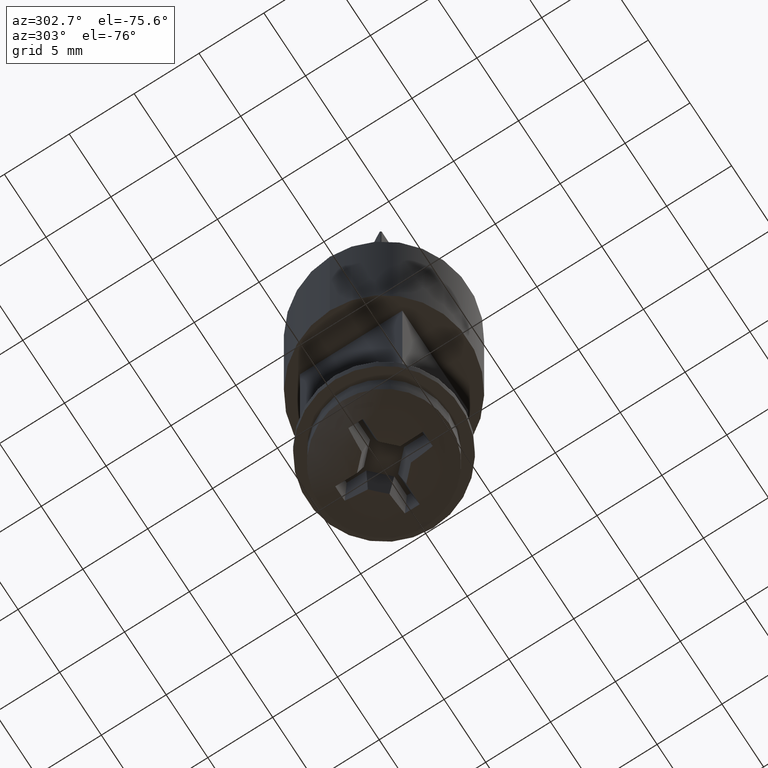
[diagram: clean part render]
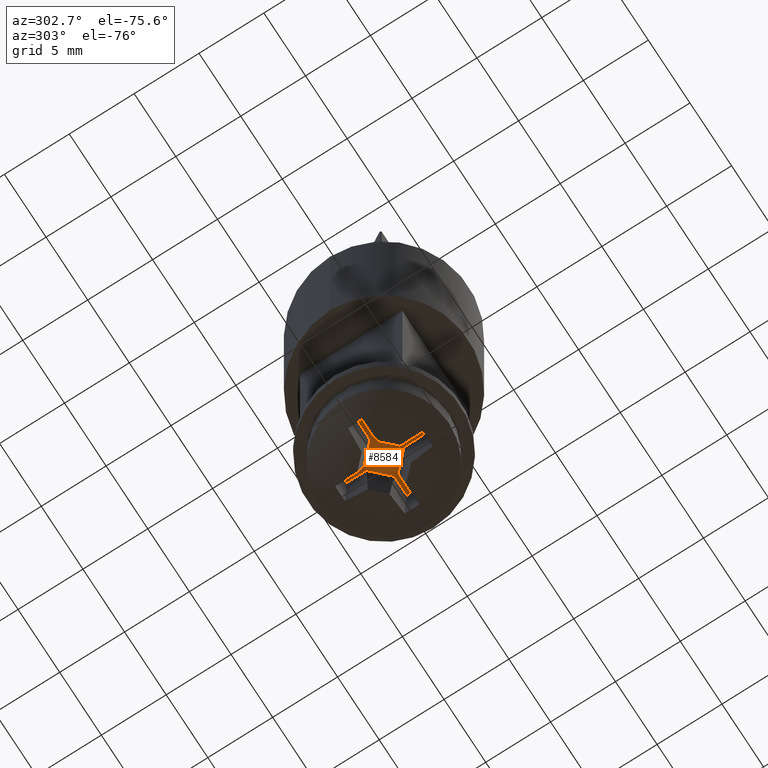
[diagram: same view with one face highlighted and labeled with its STEP entity id]
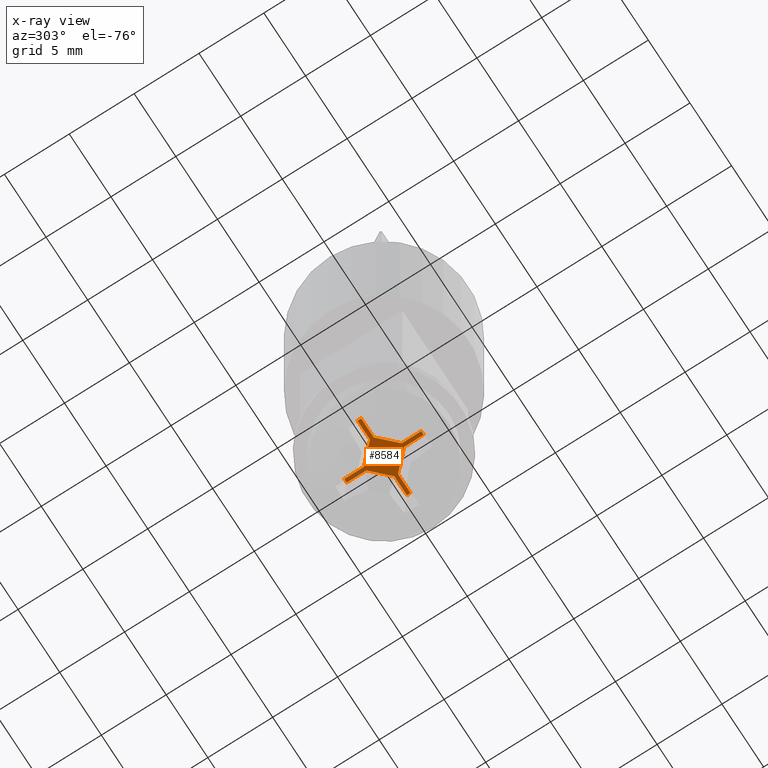
[diagram: x-ray of the same camera — body ghosted, the highlighted face saturated]
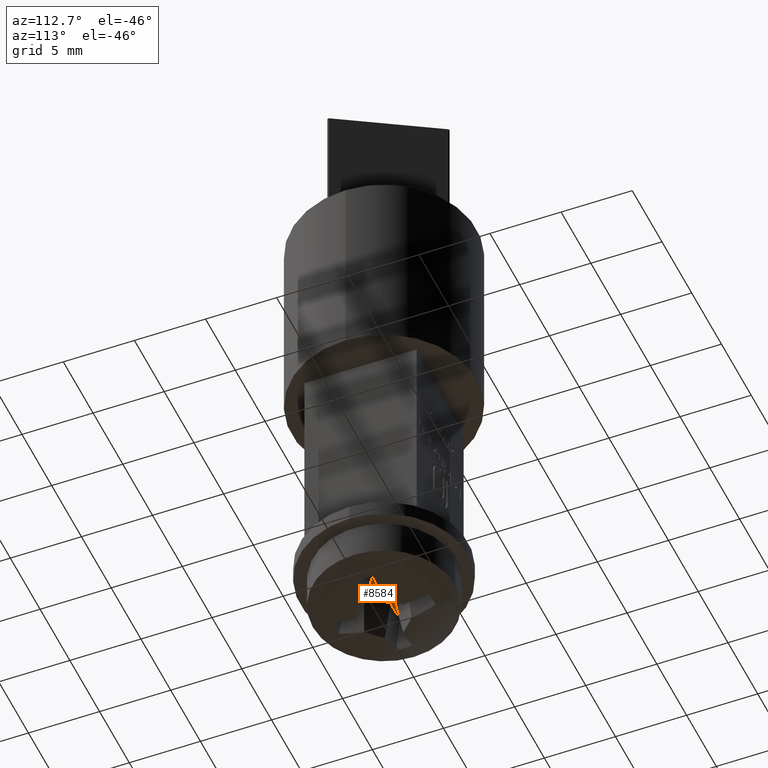
[diagram: same view with one face highlighted and labeled with its STEP entity id]
A machine part, auxiliary view. The second image highlights one B-rep face of the part: STEP entity #8584.
The next image is the same camera in x-ray: the body ghosted, the highlighted face saturated — about 0% of this face is hidden behind the body in this view.
A second angle (auxiliary view) of the same face is appended — the face is thin or edge-on in the first view.
In plain terms, the highlighted planar face has unit normal (-0, 0, 1).
Its self-contained STEP definition (entity closure, byte-faithful):
#67 = CARTESIAN_POINT ( 'NONE',  ( 0.1460190578746038137, 4.900000000000000355, -3.500000000000000000 ) ) ;
#85 = CARTESIAN_POINT ( 'NONE',  ( 2.971019057874603853, 4.900000000000000355, -0.1460190578746039247 ) ) ;
#108 = CARTESIAN_POINT ( 'NONE',  ( 1.455888919534763737, 4.900000000000000355, -0.1460190578746040357 ) ) ;
#118 = DIRECTION ( 'NONE',  ( 1.188166764367676095E-16, 0.000000000000000000, -1.000000000000000000 ) ) ;
#189 = CARTESIAN_POINT ( 'NONE',  ( 0.1460190578746044798, 4.900000000000000355, 2.971019057874603853 ) ) ;
#275 = CARTESIAN_POINT ( 'NONE',  ( -1.455888919534763959, 4.900000000000000355, -0.1460190578746040357 ) ) ;
#663 = VECTOR ( 'NONE', #16184, 1000.000000000000000 ) ;
#721 = DIRECTION ( 'NONE',  ( -1.188166764367676095E-16, 0.000000000000000000, 1.000000000000000000 ) ) ;
#1067 = ORIENTED_EDGE ( 'NONE', *, *, #5951, .T. ) ;
#1099 = VECTOR ( 'NONE', #15096, 1000.000000000000114 ) ;
#1388 = VERTEX_POINT ( 'NONE', #5156 ) ;
#1453 = CARTESIAN_POINT ( 'NONE',  ( -0.1460190578746040357, 4.900000000000000355, 1.455888919534763737 ) ) ;
#1621 = LINE ( 'NONE', #14687, #11266 ) ;
#1687 = VECTOR ( 'NONE', #13886, 1000.000000000000000 ) ;
#1788 = LINE ( 'NONE', #14284, #5142 ) ;
#1791 = VECTOR ( 'NONE', #2024, 1000.000000000000000 ) ;
#1811 = CARTESIAN_POINT ( 'NONE',  ( 2.971019057874603853, 4.900000000000000355, 0.1460190578746040357 ) ) ;
#1985 = DIRECTION ( 'NONE',  ( 1.000000000000000000, 0.000000000000000000, 5.940833821838380477E-17 ) ) ;
#2019 = VECTOR ( 'NONE', #3274, 1000.000000000000000 ) ;
#2024 = DIRECTION ( 'NONE',  ( 4.158583675286865964E-16, 0.000000000000000000, 1.000000000000000000 ) ) ;
#2147 = CARTESIAN_POINT ( 'NONE',  ( -2.971019057874603853, 4.900000000000000355, -0.6750000000000000444 ) ) ;
#2271 = DIRECTION ( 'NONE',  ( 0.7071067811865476838, 0.000000000000000000, 0.7071067811865474617 ) ) ;
#2415 = DIRECTION ( 'NONE',  ( 0.000000000000000000, 0.000000000000000000, 1.000000000000000000 ) ) ;
#2540 = CARTESIAN_POINT ( 'NONE',  ( -0.6750000000000001554, 4.900000000000000355, -2.971019057874603853 ) ) ;
#2616 = LINE ( 'NONE', #11734, #12866 ) ;
#2735 = ORIENTED_EDGE ( 'NONE', *, *, #5810, .T. ) ;
#2769 = DIRECTION ( 'NONE',  ( -0.7071067811865474617, 0.000000000000000000, 0.7071067811865474617 ) ) ;
#2988 = LINE ( 'NONE', #6048, #15989 ) ;
#3274 = DIRECTION ( 'NONE',  ( 1.000000000000000000, 0.000000000000000000, 0.000000000000000000 ) ) ;
#3356 = FACE_OUTER_BOUND ( 'NONE', #4328, .T. ) ;
#3620 = EDGE_CURVE ( 'NONE', #13171, #5856, #10935, .T. ) ;
#3701 = EDGE_CURVE ( 'NONE', #4424, #7276, #11740, .T. ) ;
#3800 = CARTESIAN_POINT ( 'NONE',  ( 0.000000000000000000, 4.900000000000000355, 0.000000000000000000 ) ) ;
#3927 = CARTESIAN_POINT ( 'NONE',  ( 0.1460190578746040357, 4.900000000000000355, 1.455888919534763737 ) ) ;
#4121 = VERTEX_POINT ( 'NONE', #9395 ) ;
#4328 = EDGE_LOOP ( 'NONE', ( #13457, #14142, #11344, #6845, #14441, #8379, #12551, #10810, #1067, #10574, #2735, #15242, #7677, #9459, #10611, #10824 ) ) ;
#4373 = EDGE_CURVE ( 'NONE', #12247, #16100, #15058, .T. ) ;
#4424 = VERTEX_POINT ( 'NONE', #108 ) ;
#4445 = CARTESIAN_POINT ( 'NONE',  ( -0.1460190578746040357, 4.900000000000000355, -3.500000000000000000 ) ) ;
#5130 = DIRECTION ( 'NONE',  ( 0.000000000000000000, -1.000000000000000000, 0.000000000000000000 ) ) ;
#5142 = VECTOR ( 'NONE', #2769, 1000.000000000000114 ) ;
#5156 = CARTESIAN_POINT ( 'NONE',  ( -1.455888919534764181, 4.900000000000000355, 0.1460190578746040357 ) ) ;
#5165 = CARTESIAN_POINT ( 'NONE',  ( -0.1460190578746033974, 4.900000000000000355, 2.971019057874603853 ) ) ;
#5199 = VERTEX_POINT ( 'NONE', #189 ) ;
#5280 = LINE ( 'NONE', #10974, #14739 ) ;
#5505 = DIRECTION ( 'NONE',  ( 0.7071067811865474617, 0.000000000000000000, -0.7071067811865474617 ) ) ;
#5603 = DIRECTION ( 'NONE',  ( 0.000000000000000000, 0.000000000000000000, -1.000000000000000000 ) ) ;
#5796 = CARTESIAN_POINT ( 'NONE',  ( 0.1460190578746037027, 4.900000000000000355, -1.455888919534763959 ) ) ;
#5810 = EDGE_CURVE ( 'NONE', #9573, #4121, #2616, .T. ) ;
#5856 = VERTEX_POINT ( 'NONE', #13195 ) ;
#5898 = EDGE_CURVE ( 'NONE', #6763, #9507, #14440, .T. ) ;
#5951 = EDGE_CURVE ( 'NONE', #16168, #5199, #9906, .T. ) ;
#6048 = CARTESIAN_POINT ( 'NONE',  ( 1.674999999999999822, 4.900000000000000355, -0.1460190578746039247 ) ) ;
#6094 = VERTEX_POINT ( 'NONE', #15118 ) ;
#6179 = PLANE ( 'NONE',  #6950 ) ;
#6225 = DIRECTION ( 'NONE',  ( 0.000000000000000000, -0.000000000000000000, -1.000000000000000000 ) ) ;
#6314 = EDGE_CURVE ( 'NONE', #16100, #1388, #12679, .T. ) ;
#6763 = VERTEX_POINT ( 'NONE', #1811 ) ;
#6845 = ORIENTED_EDGE ( 'NONE', *, *, #11533, .T. ) ;
#6950 = AXIS2_PLACEMENT_3D ( 'NONE', #3800, #5130, #6225 ) ;
#7081 = VECTOR ( 'NONE', #118, 1000.000000000000000 ) ;
#7276 = VERTEX_POINT ( 'NONE', #5796 ) ;
#7640 = VECTOR ( 'NONE', #13641, 1000.000000000000000 ) ;
#7677 = ORIENTED_EDGE ( 'NONE', *, *, #5898, .T. ) ;
#7956 = CARTESIAN_POINT ( 'NONE',  ( -2.971019057874603853, 4.900000000000000355, -0.1460190578746040357 ) ) ;
#8148 = EDGE_CURVE ( 'NONE', #9507, #4424, #2988, .T. ) ;
#8317 = EDGE_CURVE ( 'NONE', #4121, #6763, #13225, .T. ) ;
#8379 = ORIENTED_EDGE ( 'NONE', *, *, #6314, .T. ) ;
#8584 = ADVANCED_FACE ( 'NONE', ( #3356 ), #6179, .F. ) ;
#8636 = CARTESIAN_POINT ( 'NONE',  ( 0.1460190578746040357, 4.900000000000000355, 1.675000000000000044 ) ) ;
#8725 = VECTOR ( 'NONE', #5603, 1000.000000000000000 ) ;
#9395 = CARTESIAN_POINT ( 'NONE',  ( 1.455888919534763959, 4.900000000000000355, 0.1460190578746039247 ) ) ;
#9459 = ORIENTED_EDGE ( 'NONE', *, *, #8148, .T. ) ;
#9507 = VERTEX_POINT ( 'NONE', #85 ) ;
#9573 = VERTEX_POINT ( 'NONE', #3927 ) ;
#9661 = EDGE_CURVE ( 'NONE', #6094, #10608, #1788, .T. ) ;
#9906 = LINE ( 'NONE', #15784, #2019 ) ;
#9908 = CARTESIAN_POINT ( 'NONE',  ( -3.500000000000000000, 4.900000000000000355, 0.1460190578746039247 ) ) ;
#10010 = EDGE_CURVE ( 'NONE', #11329, #16168, #11850, .T. ) ;
#10039 = EDGE_CURVE ( 'NONE', #5856, #6094, #14877, .T. ) ;
#10507 = VECTOR ( 'NONE', #721, 1000.000000000000000 ) ;
#10574 = ORIENTED_EDGE ( 'NONE', *, *, #16045, .T. ) ;
#10608 = VERTEX_POINT ( 'NONE', #275 ) ;
#10611 = ORIENTED_EDGE ( 'NONE', *, *, #3701, .T. ) ;
#10656 = CARTESIAN_POINT ( 'NONE',  ( 2.971019057874603853, 4.900000000000000355, 0.6750000000000000444 ) ) ;
#10712 = CARTESIAN_POINT ( 'NONE',  ( -2.971019057874603853, 4.900000000000000355, 0.1460190578746040357 ) ) ;
#10810 = ORIENTED_EDGE ( 'NONE', *, *, #10010, .T. ) ;
#10824 = ORIENTED_EDGE ( 'NONE', *, *, #13925, .T. ) ;
#10922 = VECTOR ( 'NONE', #2415, 1000.000000000000000 ) ;
#10935 = LINE ( 'NONE', #2540, #1687 ) ;
#10974 = CARTESIAN_POINT ( 'NONE',  ( -1.300953988704684150, 4.900000000000000355, 0.3009539887046837614 ) ) ;
#11266 = VECTOR ( 'NONE', #14858, 1000.000000000000000 ) ;
#11329 = VERTEX_POINT ( 'NONE', #1453 ) ;
#11344 = ORIENTED_EDGE ( 'NONE', *, *, #9661, .T. ) ;
#11533 = EDGE_CURVE ( 'NONE', #10608, #12247, #1621, .T. ) ;
#11734 = CARTESIAN_POINT ( 'NONE',  ( 0.3009539887046839834, 4.900000000000000355, 1.300953988704683706 ) ) ;
#11740 = LINE ( 'NONE', #13833, #1099 ) ;
#11850 = LINE ( 'NONE', #13360, #1791 ) ;
#12247 = VERTEX_POINT ( 'NONE', #7956 ) ;
#12551 = ORIENTED_EDGE ( 'NONE', *, *, #15566, .T. ) ;
#12679 = LINE ( 'NONE', #9908, #663 ) ;
#12866 = VECTOR ( 'NONE', #5505, 1000.000000000000114 ) ;
#13171 = VERTEX_POINT ( 'NONE', #16285 ) ;
#13195 = CARTESIAN_POINT ( 'NONE',  ( -0.1460190578746042578, 4.900000000000000355, -2.971019057874603853 ) ) ;
#13225 = LINE ( 'NONE', #15702, #16178 ) ;
#13360 = CARTESIAN_POINT ( 'NONE',  ( -0.1460190578746039247, 4.900000000000000355, 1.674999999999999600 ) ) ;
#13457 = ORIENTED_EDGE ( 'NONE', *, *, #3620, .T. ) ;
#13641 = DIRECTION ( 'NONE',  ( -3.564500293103028040E-16, 0.000000000000000000, -1.000000000000000000 ) ) ;
#13784 = LINE ( 'NONE', #67, #7081 ) ;
#13833 = CARTESIAN_POINT ( 'NONE',  ( 0.3009539887046835949, 4.900000000000000355, -1.300953988704683928 ) ) ;
#13886 = DIRECTION ( 'NONE',  ( -1.000000000000000000, 0.000000000000000000, 0.000000000000000000 ) ) ;
#13925 = EDGE_CURVE ( 'NONE', #7276, #13171, #13784, .T. ) ;
#13945 = LINE ( 'NONE', #8636, #7640 ) ;
#14142 = ORIENTED_EDGE ( 'NONE', *, *, #10039, .T. ) ;
#14284 = CARTESIAN_POINT ( 'NONE',  ( -1.300953988704684150, 4.900000000000000355, -0.3009539887046838724 ) ) ;
#14440 = LINE ( 'NONE', #10656, #8725 ) ;
#14441 = ORIENTED_EDGE ( 'NONE', *, *, #4373, .T. ) ;
#14687 = CARTESIAN_POINT ( 'NONE',  ( -3.500000000000000000, 4.900000000000000355, -0.1460190578746039247 ) ) ;
#14739 = VECTOR ( 'NONE', #2271, 1000.000000000000000 ) ;
#14858 = DIRECTION ( 'NONE',  ( -1.000000000000000000, 0.000000000000000000, 0.000000000000000000 ) ) ;
#14877 = LINE ( 'NONE', #4445, #10507 ) ;
#14959 = DIRECTION ( 'NONE',  ( -1.000000000000000000, 0.000000000000000000, 0.000000000000000000 ) ) ;
#15058 = LINE ( 'NONE', #2147, #10922 ) ;
#15096 = DIRECTION ( 'NONE',  ( -0.7071067811865474617, 0.000000000000000000, -0.7071067811865474617 ) ) ;
#15118 = CARTESIAN_POINT ( 'NONE',  ( -0.1460190578746043688, 4.900000000000000355, -1.455888919534763737 ) ) ;
#15242 = ORIENTED_EDGE ( 'NONE', *, *, #8317, .T. ) ;
#15566 = EDGE_CURVE ( 'NONE', #1388, #11329, #5280, .T. ) ;
#15702 = CARTESIAN_POINT ( 'NONE',  ( 1.675000000000000044, 4.900000000000000355, 0.1460190578746038137 ) ) ;
#15784 = CARTESIAN_POINT ( 'NONE',  ( -0.6749999999999992673, 4.900000000000000355, 2.971019057874603853 ) ) ;
#15989 = VECTOR ( 'NONE', #14959, 1000.000000000000000 ) ;
#16045 = EDGE_CURVE ( 'NONE', #5199, #9573, #13945, .T. ) ;
#16100 = VERTEX_POINT ( 'NONE', #10712 ) ;
#16168 = VERTEX_POINT ( 'NONE', #5165 ) ;
#16178 = VECTOR ( 'NONE', #1985, 1000.000000000000000 ) ;
#16184 = DIRECTION ( 'NONE',  ( 1.000000000000000000, 0.000000000000000000, 0.000000000000000000 ) ) ;
#16285 = CARTESIAN_POINT ( 'NONE',  ( 0.1460190578746038137, 4.900000000000000355, -2.971019057874603853 ) ) ;